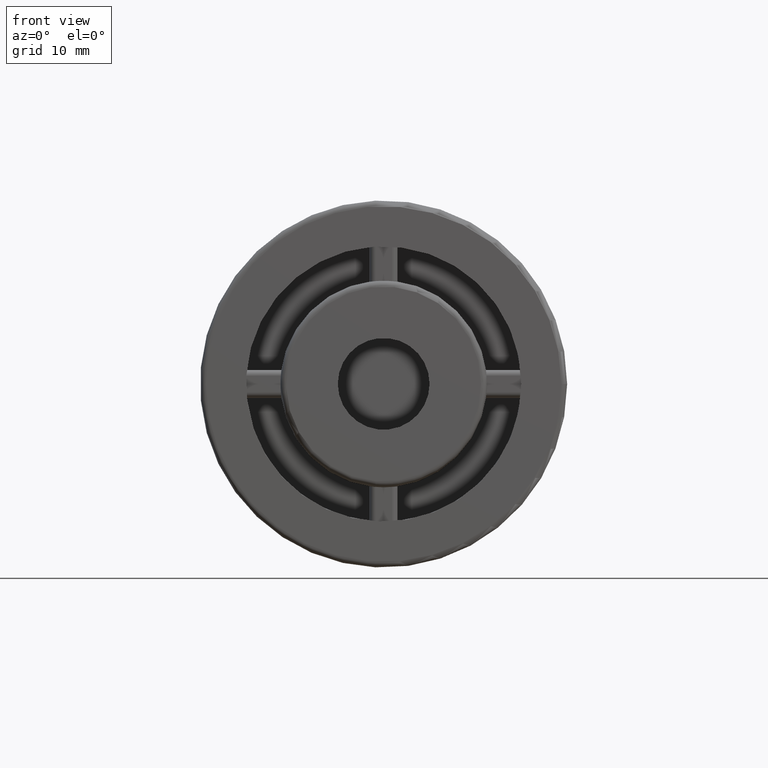
[diagram: clean part render]
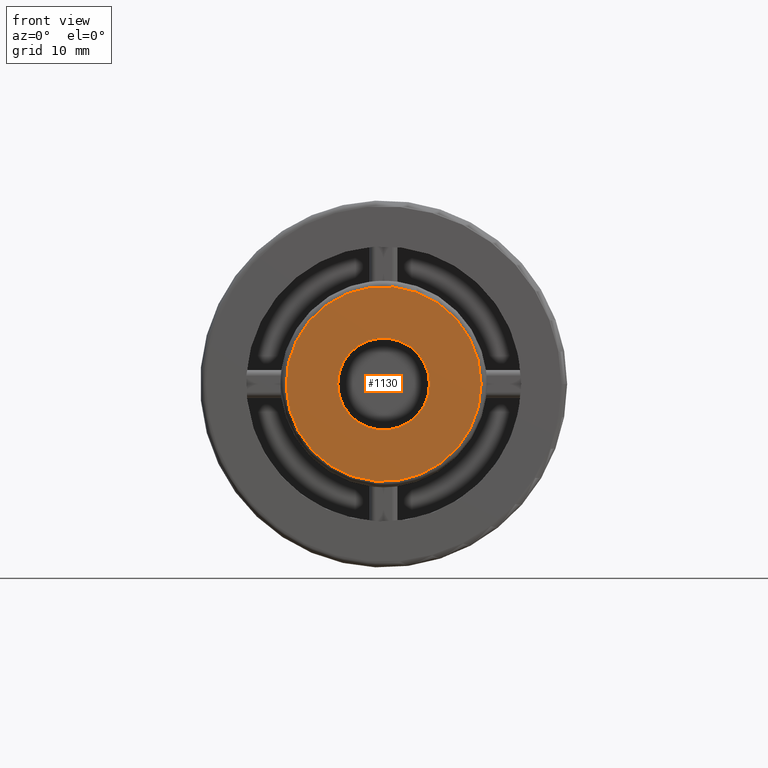
[diagram: same view with one face highlighted and labeled with its STEP entity id]
A machine part, front view. The second image highlights one B-rep face of the part: STEP entity #1130.
In plain terms, the highlighted planar face has unit normal (0, -1, 0).
Its self-contained STEP definition (entity closure, byte-faithful):
#41=FACE_BOUND('',#290,.T.);
#78=CIRCLE('',#1216,8.5);
#82=CIRCLE('',#1224,4.);
#164=PLANE('',#1223);
#210=FACE_OUTER_BOUND('',#289,.T.);
#289=EDGE_LOOP('',(#859));
#290=EDGE_LOOP('',(#860));
#544=VERTEX_POINT('',#1972);
#545=VERTEX_POINT('',#1981);
#673=EDGE_CURVE('',#544,#544,#78,.T.);
#677=EDGE_CURVE('',#545,#545,#82,.T.);
#859=ORIENTED_EDGE('',*,*,#673,.F.);
#860=ORIENTED_EDGE('',*,*,#677,.T.);
#1130=ADVANCED_FACE('',(#210,#41),#164,.T.);
#1216=AXIS2_PLACEMENT_3D('',#1973,#1438,#1439);
#1223=AXIS2_PLACEMENT_3D('',#1980,#1452,#1453);
#1224=AXIS2_PLACEMENT_3D('',#1982,#1454,#1455);
#1438=DIRECTION('center_axis',(-6.34413156928661E-17,1.,0.));
#1439=DIRECTION('ref_axis',(-1.,-6.34413156928661E-17,0.));
#1452=DIRECTION('center_axis',(6.34413156928661E-17,-1.,0.));
#1453=DIRECTION('ref_axis',(0.,0.,-1.));
#1454=DIRECTION('center_axis',(-6.34413156928661E-17,1.,0.));
#1455=DIRECTION('ref_axis',(-1.,-1.00929365875014E-16,0.));
#1972=CARTESIAN_POINT('',(8.5,0.500000000000001,-1.04094977927525E-15));
#1973=CARTESIAN_POINT('Origin',(3.17206578464331E-17,0.5,0.));
#1980=CARTESIAN_POINT('Origin',(-7.39255249150933E-16,0.5,-3.08395284618099E-16));
#1981=CARTESIAN_POINT('',(4.,0.5,-4.89858719658941E-16));
#1982=CARTESIAN_POINT('Origin',(-5.04646829375071E-17,0.5,0.));